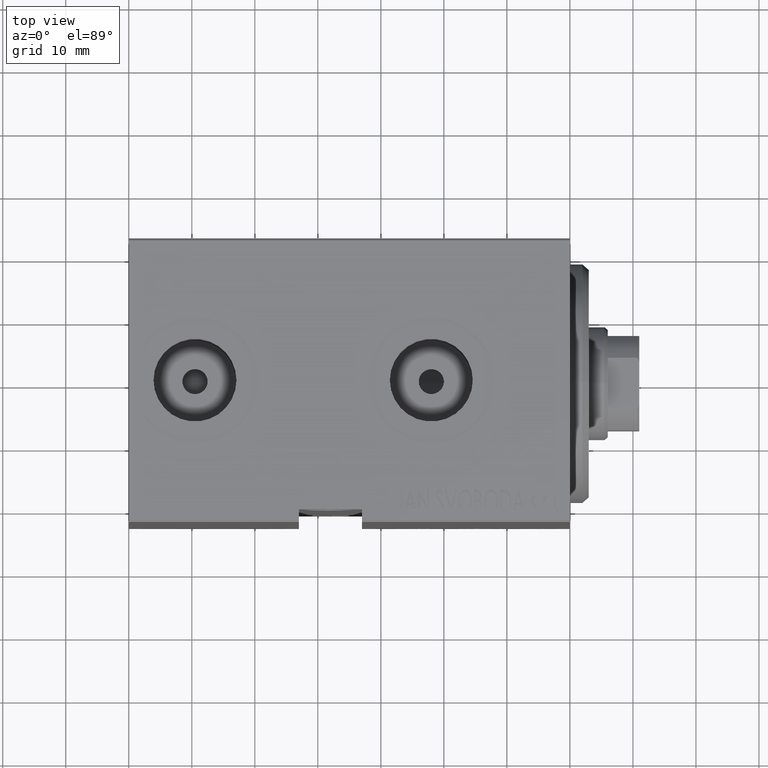
[diagram: clean part render]
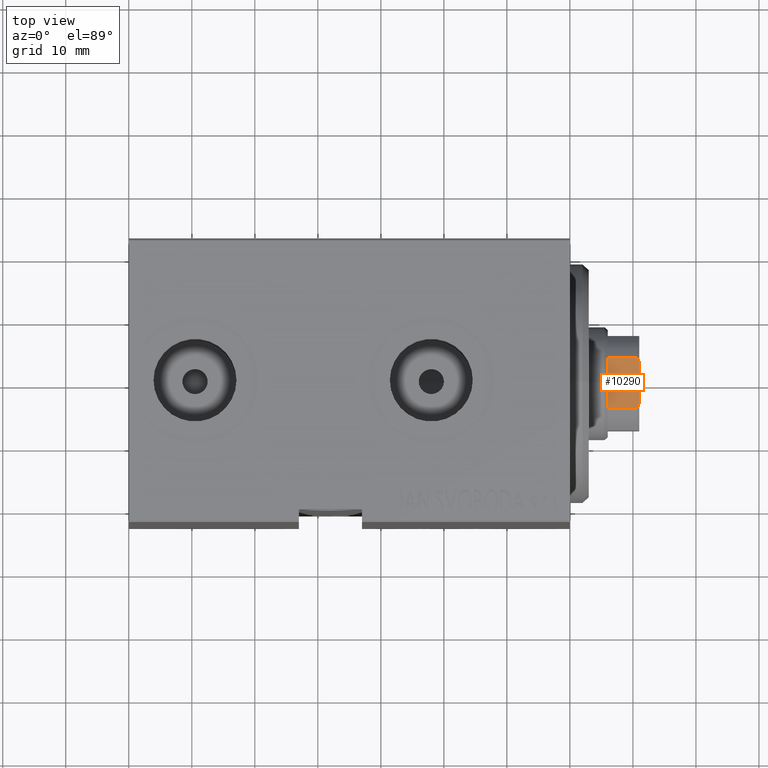
[diagram: same view with one face highlighted and labeled with its STEP entity id]
A machine part, top view. The second image highlights one B-rep face of the part: STEP entity #10290.
In plain terms, the highlighted planar face has unit normal (-0, 0, -1).
Its self-contained STEP definition (entity closure, byte-faithful):
#350 = EDGE_LOOP ( 'NONE', ( #12252, #35390, #19817, #18502, #19252, #4463 ) ) ;
#2977 = CARTESIAN_POINT ( 'NONE',  ( -7.500000000000000888, 3.774404943294785042, 74.80616237962603066 ) ) ;
#3194 = CARTESIAN_POINT ( 'NONE',  ( -7.500000000000000888, 3.546278369582360757, 74.90654544845624230 ) ) ;
#3382 = EDGE_CURVE ( 'NONE', #31294, #41319, #19539, .T. ) ;
#3650 = EDGE_CURVE ( 'NONE', #16650, #6595, #28079, .T. ) ;
#4152 = VERTEX_POINT ( 'NONE', #20863 ) ;
#4463 = ORIENTED_EDGE ( 'NONE', *, *, #13372, .T. ) ;
#6595 = VERTEX_POINT ( 'NONE', #31309 ) ;
#7207 = CARTESIAN_POINT ( 'NONE',  ( -7.500000000000001776, 7.500000000000001776, 75.00000000000001421 ) ) ;
#8732 = CARTESIAN_POINT ( 'NONE',  ( -7.499999999999996447, -3.774404943294785486, 74.80616237962603066 ) ) ;
#8742 = LINE ( 'NONE', #32406, #35248 ) ;
#10290 = ADVANCED_FACE ( 'NONE', ( #26858 ), #44064, .F. ) ;
#10839 = DIRECTION ( 'NONE',  ( 1.734723475976807094E-16, -1.000000000000000000, 0.000000000000000000 ) ) ;
#11710 = VECTOR ( 'NONE', #13026, 1000.000000000000000 ) ;
#12252 = ORIENTED_EDGE ( 'NONE', *, *, #26690, .T. ) ;
#13026 = DIRECTION ( 'NONE',  ( 1.734723475976807094E-16, -1.000000000000000000, 0.000000000000000000 ) ) ;
#13243 = DIRECTION ( 'NONE',  ( 1.000000000000000000, 1.734723475976807094E-16, -0.000000000000000000 ) ) ;
#13372 = EDGE_CURVE ( 'NONE', #4152, #18862, #16177, .T. ) ;
#14188 = LINE ( 'NONE', #42487, #33877 ) ;
#15198 = CARTESIAN_POINT ( 'NONE',  ( -7.499999999999999112, -3.315116890850218212, 75.00000000000001421 ) ) ;
#15868 = CARTESIAN_POINT ( 'NONE',  ( -7.499999999999996447, -4.000000000000007105, 74.70000000000004547 ) ) ;
#16177 = LINE ( 'NONE', #30013, #11710 ) ;
#16650 = VERTEX_POINT ( 'NONE', #27253 ) ;
#18325 = CARTESIAN_POINT ( 'NONE',  ( -7.499999999999998224, -4.000000000000007994, 70.00000000000001421 ) ) ;
#18502 = ORIENTED_EDGE ( 'NONE', *, *, #3382, .T. ) ;
#18642 = EDGE_CURVE ( 'NONE', #31294, #6595, #14188, .T. ) ;
#18862 = VERTEX_POINT ( 'NONE', #18325 ) ;
#19252 = ORIENTED_EDGE ( 'NONE', *, *, #33113, .F. ) ;
#19539 = B_SPLINE_CURVE_WITH_KNOTS ( 'NONE', 3,
 ( #27055, #3194, #2977, #23283 ),
 .UNSPECIFIED., .F., .F.,
 ( 4, 4 ),
 ( 0.000000000000000000, 0.0007477064084242969868 ),
 .UNSPECIFIED. ) ;
#19817 = ORIENTED_EDGE ( 'NONE', *, *, #18642, .F. ) ;
#19960 = CARTESIAN_POINT ( 'NONE',  ( -7.499999999999996447, -4.000000000000007105, -0.001000000000001000089 ) ) ;
#20863 = CARTESIAN_POINT ( 'NONE',  ( -7.499999999999996447, 4.000000000000011546, 70.00000000000000000 ) ) ;
#23086 = LINE ( 'NONE', #19960, #29219 ) ;
#23272 = CARTESIAN_POINT ( 'NONE',  ( -7.500000000000000888, 3.315116890850160036, 75.00000000000001421 ) ) ;
#23283 = CARTESIAN_POINT ( 'NONE',  ( -7.499999999999996447, 4.000000000000008882, 74.70000000000001705 ) ) ;
#23746 = AXIS2_PLACEMENT_3D ( 'NONE', #7207, #13243, #26632 ) ;
#26632 = DIRECTION ( 'NONE',  ( -1.734723475976807094E-16, 1.000000000000000000, 0.000000000000000000 ) ) ;
#26690 = EDGE_CURVE ( 'NONE', #18862, #16650, #23086, .T. ) ;
#26858 = FACE_OUTER_BOUND ( 'NONE', #350, .T. ) ;
#27055 = CARTESIAN_POINT ( 'NONE',  ( -7.500000000000000888, 3.315116890850160036, 75.00000000000001421 ) ) ;
#27253 = CARTESIAN_POINT ( 'NONE',  ( -7.499999999999996447, -4.000000000000007105, 74.70000000000004547 ) ) ;
#28079 = B_SPLINE_CURVE_WITH_KNOTS ( 'NONE', 3,
 ( #15868, #8732, #29495, #15198 ),
 .UNSPECIFIED., .F., .F.,
 ( 4, 4 ),
 ( 0.000000000000000000, 0.0007477064084242304167 ),
 .UNSPECIFIED. ) ;
#29219 = VECTOR ( 'NONE', #36278, 1000.000000000000000 ) ;
#29495 = CARTESIAN_POINT ( 'NONE',  ( -7.500000000000000000, -3.546278369582442025, 74.90654544845632756 ) ) ;
#30013 = CARTESIAN_POINT ( 'NONE',  ( -7.500000000000001776, 7.500000000000001776, 70.00000000000000000 ) ) ;
#31294 = VERTEX_POINT ( 'NONE', #23272 ) ;
#31309 = CARTESIAN_POINT ( 'NONE',  ( -7.499999999999999112, -3.315116890850218212, 75.00000000000001421 ) ) ;
#32406 = CARTESIAN_POINT ( 'NONE',  ( -7.499999999999996447, 4.000000000000008882, -0.001000000000001000089 ) ) ;
#33113 = EDGE_CURVE ( 'NONE', #4152, #41319, #8742, .T. ) ;
#33877 = VECTOR ( 'NONE', #10839, 1000.000000000000000 ) ;
#35248 = VECTOR ( 'NONE', #35979, 1000.000000000000000 ) ;
#35390 = ORIENTED_EDGE ( 'NONE', *, *, #3650, .T. ) ;
#35979 = DIRECTION ( 'NONE',  ( -0.000000000000000000, -0.000000000000000000, 1.000000000000000000 ) ) ;
#36278 = DIRECTION ( 'NONE',  ( -0.000000000000000000, -0.000000000000000000, 1.000000000000000000 ) ) ;
#37058 = CARTESIAN_POINT ( 'NONE',  ( -7.499999999999996447, 4.000000000000008882, 74.70000000000001705 ) ) ;
#41319 = VERTEX_POINT ( 'NONE', #37058 ) ;
#42487 = CARTESIAN_POINT ( 'NONE',  ( -7.500000000000001776, 7.500000000000001776, 75.00000000000001421 ) ) ;
#44064 = PLANE ( 'NONE',  #23746 ) ;